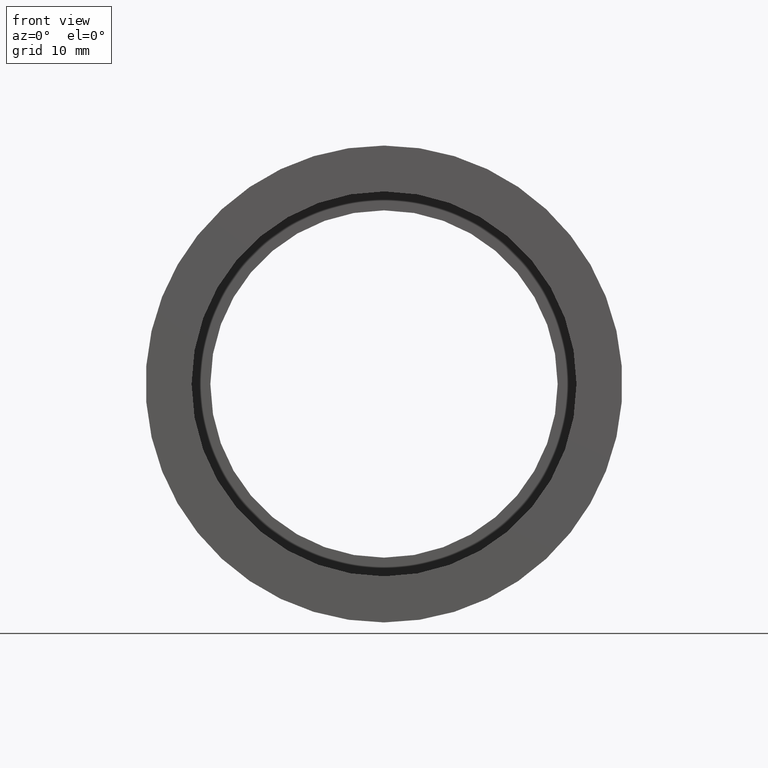
[diagram: clean part render]
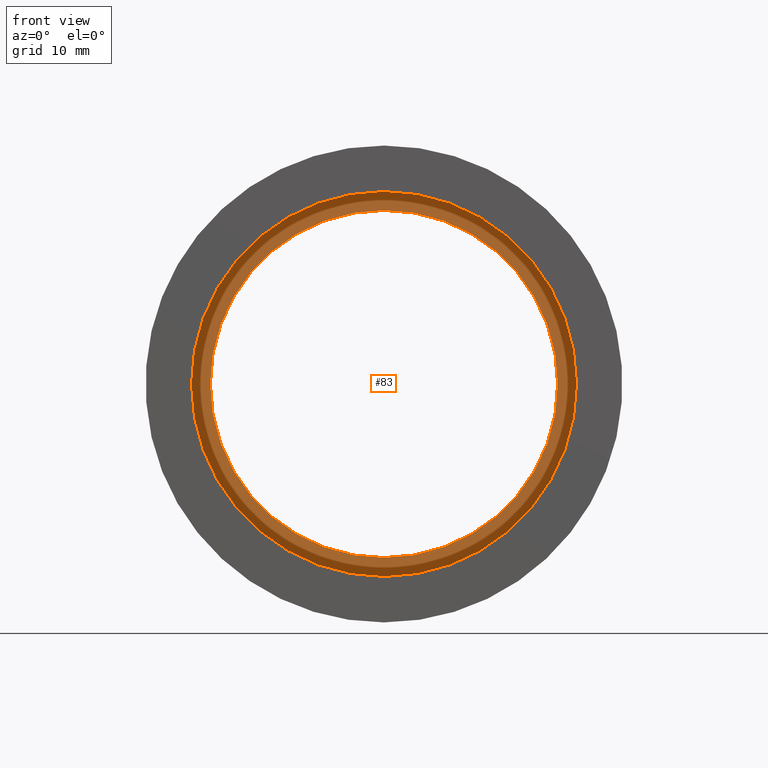
[diagram: same view with one face highlighted and labeled with its STEP entity id]
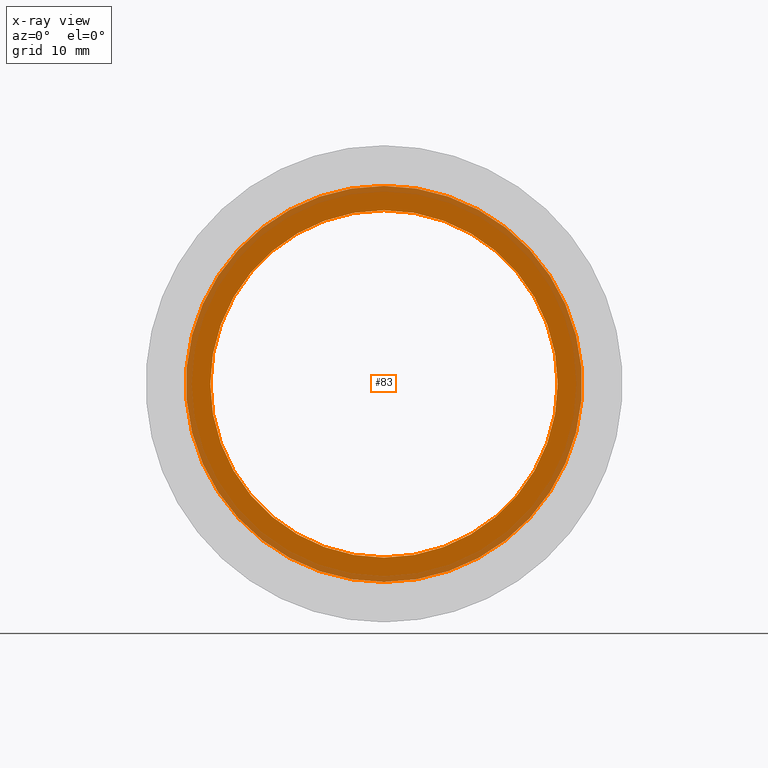
[diagram: x-ray of the same camera — body ghosted, the highlighted face saturated]
A machine part, front view. The second image highlights one B-rep face of the part: STEP entity #83.
The next image is the same camera in x-ray: the body ghosted, the highlighted face saturated — about 24% of this face is hidden behind the body in this view.
In plain terms, the highlighted planar face has unit normal (-0, 1, 0).
Its self-contained STEP definition (entity closure, byte-faithful):
#3 = CARTESIAN_POINT ( 'NONE',  ( 0.0000000000000000000, 23.39999999999997700, 21.10000000000001600 ) ) ;
#10 = AXIS2_PLACEMENT_3D ( 'NONE', #493, #354, #26 ) ;
#21 = VERTEX_POINT ( 'NONE', #249 ) ;
#22 = CARTESIAN_POINT ( 'NONE',  ( 2.584004746200917000E-015, 23.39999999999997700, -21.10000000000001600 ) ) ;
#26 = DIRECTION ( 'NONE',  ( 0.0000000000000000000, 0.0000000000000000000, 1.000000000000000000 ) ) ;
#54 = ORIENTED_EDGE ( 'NONE', *, *, #239, .F. ) ;
#75 = VERTEX_POINT ( 'NONE', #350 ) ;
#81 = VERTEX_POINT ( 'NONE', #22 ) ;
#83 = ADVANCED_FACE ( 'NONE', ( #508, #471 ), #113, .F. ) ;
#92 = AXIS2_PLACEMENT_3D ( 'NONE', #102, #530, #250 ) ;
#94 = AXIS2_PLACEMENT_3D ( 'NONE', #181, #451, #264 ) ;
#102 = CARTESIAN_POINT ( 'NONE',  ( 0.0000000000000000000, 23.39999999999997700, 0.0000000000000000000 ) ) ;
#113 = PLANE ( 'NONE',  #10 ) ;
#157 = CIRCLE ( 'NONE', #525, 21.10000000000001600 ) ;
#181 = CARTESIAN_POINT ( 'NONE',  ( 0.0000000000000000000, 23.39999999999997700, 0.0000000000000000000 ) ) ;
#202 = AXIS2_PLACEMENT_3D ( 'NONE', #243, #236, #329 ) ;
#236 = DIRECTION ( 'NONE',  ( -0.0000000000000000000, 1.000000000000000000, -0.0000000000000000000 ) ) ;
#239 = EDGE_CURVE ( 'NONE', #81, #464, #293, .T. ) ;
#243 = CARTESIAN_POINT ( 'NONE',  ( 0.0000000000000000000, 23.39999999999997700, 0.0000000000000000000 ) ) ;
#249 = CARTESIAN_POINT ( 'NONE',  ( 2.265596578422605000E-015, 23.39999999999997700, -18.50000000000001400 ) ) ;
#250 = DIRECTION ( 'NONE',  ( 0.0000000000000000000, 0.0000000000000000000, 1.000000000000000000 ) ) ;
#257 = EDGE_CURVE ( 'NONE', #464, #81, #157, .T. ) ;
#264 = DIRECTION ( 'NONE',  ( 0.0000000000000000000, 0.0000000000000000000, 1.000000000000000000 ) ) ;
#265 = ORIENTED_EDGE ( 'NONE', *, *, #481, .T. ) ;
#293 = CIRCLE ( 'NONE', #94, 21.10000000000001600 ) ;
#329 = DIRECTION ( 'NONE',  ( 0.0000000000000000000, 0.0000000000000000000, 1.000000000000000000 ) ) ;
#350 = CARTESIAN_POINT ( 'NONE',  ( 0.0000000000000000000, 23.39999999999997700, 18.50000000000001400 ) ) ;
#354 = DIRECTION ( 'NONE',  ( -0.0000000000000000000, 1.000000000000000000, 0.0000000000000000000 ) ) ;
#417 = EDGE_LOOP ( 'NONE', ( #574, #265 ) ) ;
#451 = DIRECTION ( 'NONE',  ( -0.0000000000000000000, 1.000000000000000000, -0.0000000000000000000 ) ) ;
#464 = VERTEX_POINT ( 'NONE', #3 ) ;
#471 = FACE_BOUND ( 'NONE', #417, .T. ) ;
#474 = CIRCLE ( 'NONE', #202, 18.50000000000001400 ) ;
#481 = EDGE_CURVE ( 'NONE', #21, #75, #474, .T. ) ;
#493 = CARTESIAN_POINT ( 'NONE',  ( 21.10000000000001600, 23.39999999999998800, 0.0000000000000000000 ) ) ;
#503 = DIRECTION ( 'NONE',  ( -0.0000000000000000000, 1.000000000000000000, -0.0000000000000000000 ) ) ;
#508 = FACE_OUTER_BOUND ( 'NONE', #581, .T. ) ;
#525 = AXIS2_PLACEMENT_3D ( 'NONE', #554, #503, #608 ) ;
#530 = DIRECTION ( 'NONE',  ( -0.0000000000000000000, 1.000000000000000000, -0.0000000000000000000 ) ) ;
#532 = ORIENTED_EDGE ( 'NONE', *, *, #257, .F. ) ;
#554 = CARTESIAN_POINT ( 'NONE',  ( 0.0000000000000000000, 23.39999999999997700, 0.0000000000000000000 ) ) ;
#574 = ORIENTED_EDGE ( 'NONE', *, *, #591, .T. ) ;
#577 = CIRCLE ( 'NONE', #92, 18.50000000000001400 ) ;
#581 = EDGE_LOOP ( 'NONE', ( #532, #54 ) ) ;
#591 = EDGE_CURVE ( 'NONE', #75, #21, #577, .T. ) ;
#608 = DIRECTION ( 'NONE',  ( 0.0000000000000000000, 0.0000000000000000000, 1.000000000000000000 ) ) ;